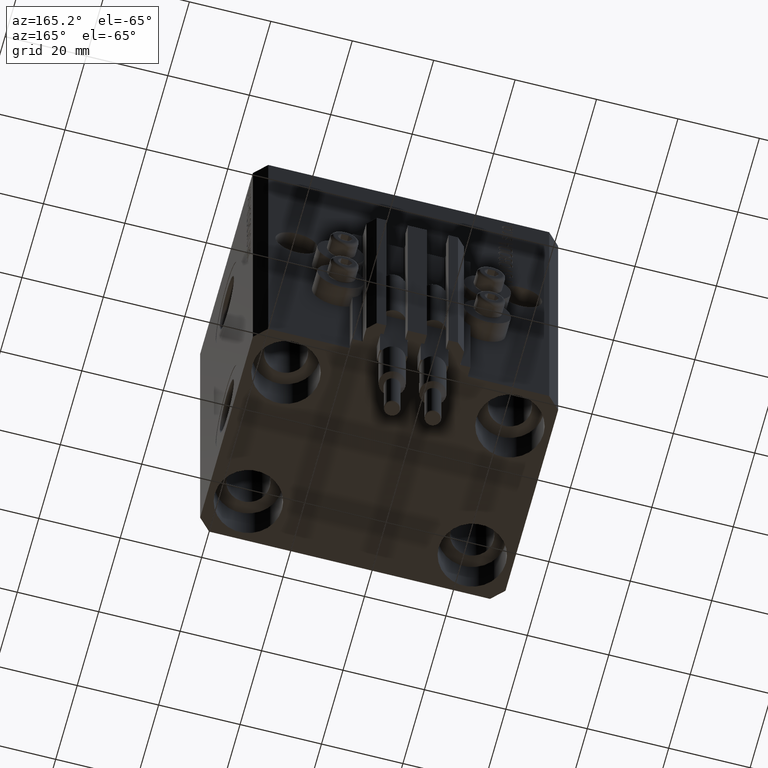
[diagram: clean part render]
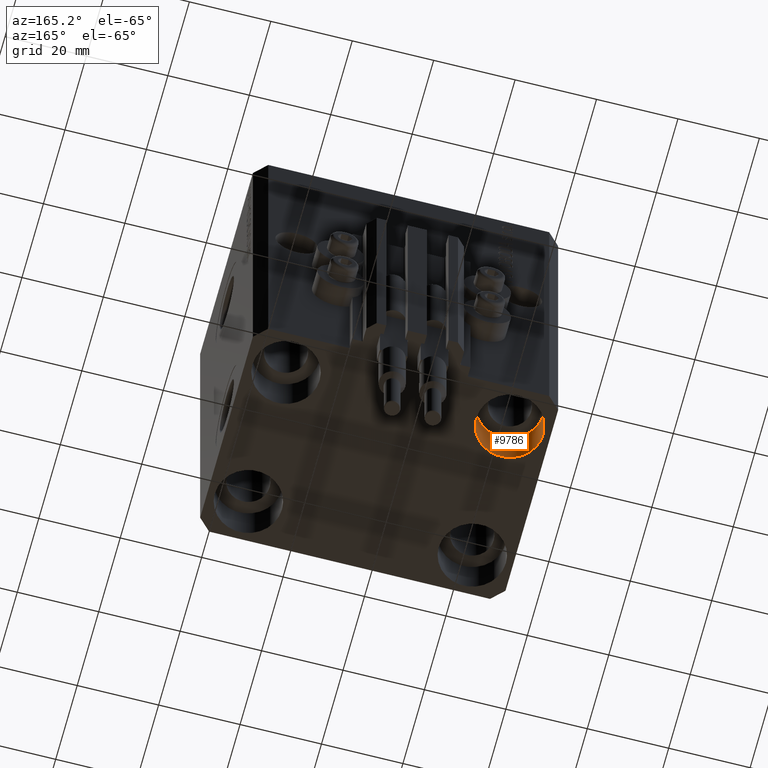
[diagram: same view with one face highlighted and labeled with its STEP entity id]
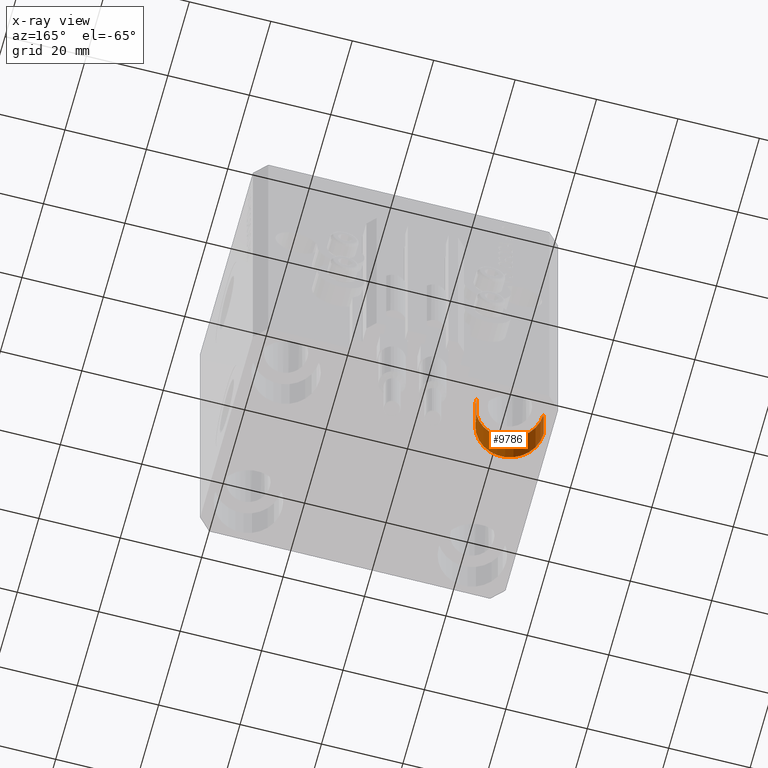
[diagram: x-ray of the same camera — body ghosted, the highlighted face saturated]
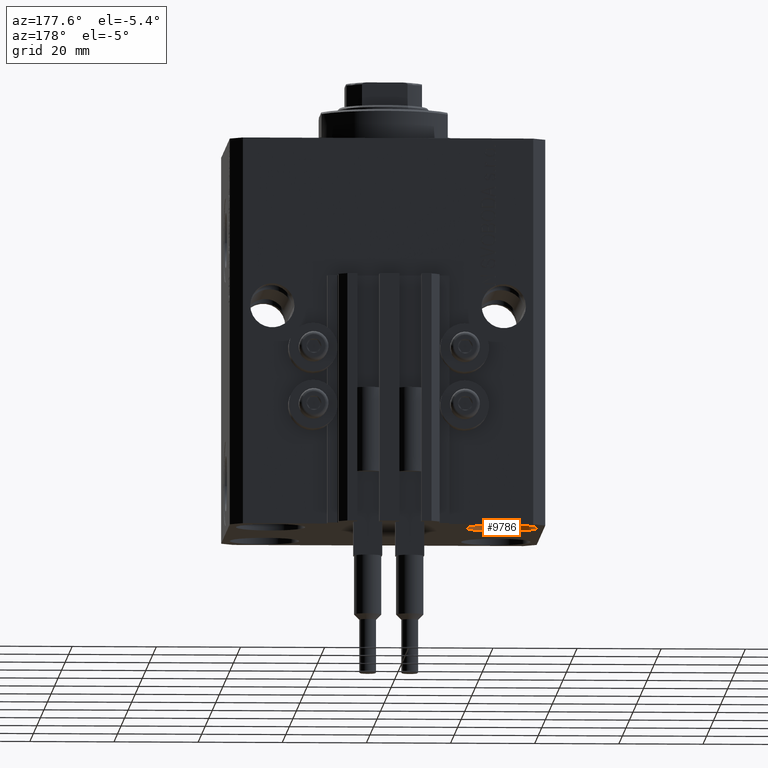
[diagram: same view with one face highlighted and labeled with its STEP entity id]
A machine part, auxiliary view. The second image highlights one B-rep face of the part: STEP entity #9786.
The next image is the same camera in x-ray: the body ghosted, the highlighted face saturated — about 0% of this face is hidden behind the body in this view.
A second angle (auxiliary view) of the same face is appended — the face is thin or edge-on in the first view.
In plain terms, the highlighted cylindrical surface (edge-blend (fillet) strip) has radius 8.25 mm, axis along (-0, -0, -1).
Its self-contained STEP definition (entity closure, byte-faithful):
#2914 = ORIENTED_EDGE ( 'NONE', *, *, #24970, .F. ) ;
#4241 = ORIENTED_EDGE ( 'NONE', *, *, #38773, .T. ) ;
#4543 = DIRECTION ( 'NONE',  ( -0.000000000000000000, -0.000000000000000000, 1.000000000000000000 ) ) ;
#5277 = VERTEX_POINT ( 'NONE', #22368 ) ;
#6498 = FACE_OUTER_BOUND ( 'NONE', #16466, .T. ) ;
#7330 = DIRECTION ( 'NONE',  ( 1.000000000000000000, 0.000000000000000000, 0.000000000000000000 ) ) ;
#7736 = CARTESIAN_POINT ( 'NONE',  ( -19.25000000000000355, 17.50000000000000000, -92.00000000000000000 ) ) ;
#9263 = DIRECTION ( 'NONE',  ( -0.000000000000000000, -0.000000000000000000, -1.000000000000000000 ) ) ;
#9344 = EDGE_CURVE ( 'NONE', #5277, #38700, #32915, .T. ) ;
#9597 = EDGE_CURVE ( 'NONE', #47933, #38700, #47006, .T. ) ;
#9786 = ADVANCED_FACE ( 'NONE', ( #6498 ), #35507, .F. ) ;
#11940 = CIRCLE ( 'NONE', #39926, 8.250000000000000000 ) ;
#16466 = EDGE_LOOP ( 'NONE', ( #4241, #31584, #39648, #2914 ) ) ;
#16738 = DIRECTION ( 'NONE',  ( -1.000000000000000000, 0.000000000000000000, 0.000000000000000000 ) ) ;
#17448 = DIRECTION ( 'NONE',  ( -0.000000000000000000, -0.000000000000000000, -1.000000000000000000 ) ) ;
#18030 = DIRECTION ( 'NONE',  ( -0.000000000000000000, -0.000000000000000000, 1.000000000000000000 ) ) ;
#20522 = LINE ( 'NONE', #35382, #23294 ) ;
#21168 = CARTESIAN_POINT ( 'NONE',  ( -19.25000000000000355, 17.50000000000000000, -81.00000000000000000 ) ) ;
#22368 = CARTESIAN_POINT ( 'NONE',  ( -35.75000000000000711, 17.50000000000000000, -92.00000000000000000 ) ) ;
#23294 = VECTOR ( 'NONE', #31739, 1000.000000000000000 ) ;
#24970 = EDGE_CURVE ( 'NONE', #26794, #5277, #20522, .T. ) ;
#26794 = VERTEX_POINT ( 'NONE', #44610 ) ;
#26970 = CARTESIAN_POINT ( 'NONE',  ( -27.50000000000000355, 17.50000000000000000, -81.00000000000000000 ) ) ;
#29070 = CARTESIAN_POINT ( 'NONE',  ( -19.25000000000000355, 17.50000000000000000, -81.00000000000000000 ) ) ;
#29147 = VECTOR ( 'NONE', #9263, 1000.000000000000000 ) ;
#31584 = ORIENTED_EDGE ( 'NONE', *, *, #9597, .T. ) ;
#31739 = DIRECTION ( 'NONE',  ( -0.000000000000000000, -0.000000000000000000, -1.000000000000000000 ) ) ;
#32915 = CIRCLE ( 'NONE', #46915, 8.250000000000000000 ) ;
#35382 = CARTESIAN_POINT ( 'NONE',  ( -35.75000000000000711, 17.50000000000000000, -81.00000000000000000 ) ) ;
#35507 = CYLINDRICAL_SURFACE ( 'NONE', #36123, 8.250000000000000000 ) ;
#36123 = AXIS2_PLACEMENT_3D ( 'NONE', #43068, #17448, #16738 ) ;
#36796 = CARTESIAN_POINT ( 'NONE',  ( -27.50000000000000355, 17.50000000000000000, -92.00000000000000000 ) ) ;
#38700 = VERTEX_POINT ( 'NONE', #7736 ) ;
#38773 = EDGE_CURVE ( 'NONE', #26794, #47933, #11940, .T. ) ;
#39648 = ORIENTED_EDGE ( 'NONE', *, *, #9344, .F. ) ;
#39926 = AXIS2_PLACEMENT_3D ( 'NONE', #26970, #4543, #45488 ) ;
#43068 = CARTESIAN_POINT ( 'NONE',  ( -27.50000000000000355, 17.50000000000000000, -81.00000000000000000 ) ) ;
#44610 = CARTESIAN_POINT ( 'NONE',  ( -35.75000000000000711, 17.50000000000000000, -81.00000000000000000 ) ) ;
#45488 = DIRECTION ( 'NONE',  ( 1.000000000000000000, 0.000000000000000000, 0.000000000000000000 ) ) ;
#46915 = AXIS2_PLACEMENT_3D ( 'NONE', #36796, #18030, #7330 ) ;
#47006 = LINE ( 'NONE', #21168, #29147 ) ;
#47933 = VERTEX_POINT ( 'NONE', #29070 ) ;